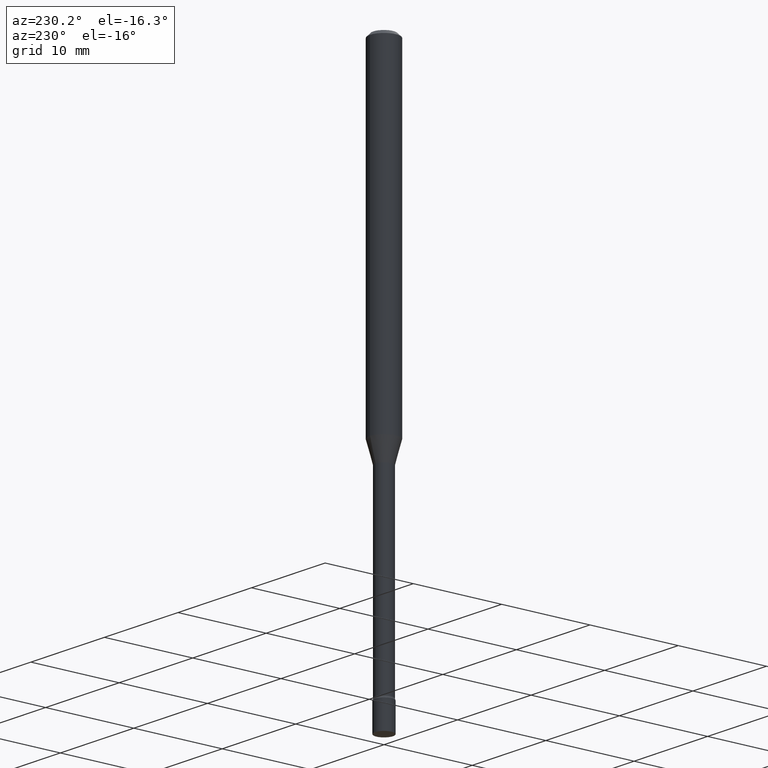
[diagram: clean part render]
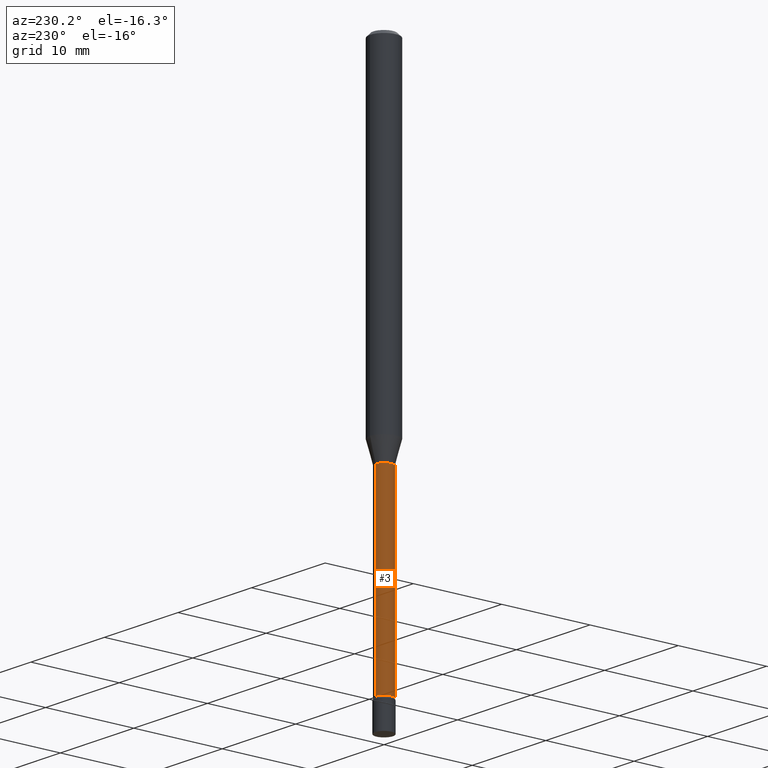
[diagram: same view with one face highlighted and labeled with its STEP entity id]
A machine part, auxiliary view. The second image highlights one B-rep face of the part: STEP entity #3.
In plain terms, the highlighted cylindrical surface (edge-blend (fillet) strip) has radius 0.955 mm, axis along (-0, 0, 1).
Its self-contained STEP definition (entity closure, byte-faithful):
#2 = VERTEX_POINT ( 'NONE', #427 ) ;
#3 = ADVANCED_FACE ( 'NONE', ( #218 ), #393, .T. ) ;
#6 = LINE ( 'NONE', #289, #125 ) ;
#23 = CARTESIAN_POINT ( 'NONE',  ( -2.625593966810039482E-16, -0.03760000000000005005, 1.312797982603617000E-16 ) ) ;
#29 = VERTEX_POINT ( 'NONE', #74 ) ;
#66 = CIRCLE ( 'NONE', #181, 0.03760000000000009862 ) ;
#74 = CARTESIAN_POINT ( 'NONE',  ( -2.625593966809462627E-16, -0.03760000000000837672, -2.371861204020250025 ) ) ;
#77 = EDGE_CURVE ( 'NONE', #78, #2, #6, .T. ) ;
#78 = VERTEX_POINT ( 'NONE', #228 ) ;
#85 = VECTOR ( 'NONE', #285, 39.37007874015748143 ) ;
#113 = EDGE_LOOP ( 'NONE', ( #147, #470, #443, #209 ) ) ;
#125 = VECTOR ( 'NONE', #241, 39.37007874015748143 ) ;
#147 = ORIENTED_EDGE ( 'NONE', *, *, #77, .F. ) ;
#168 = LINE ( 'NONE', #23, #85 ) ;
#178 = DIRECTION ( 'NONE',  ( -6.982962677686265922E-15, -1.000000000000000000, 3.491483996286210646E-15 ) ) ;
#181 = AXIS2_PLACEMENT_3D ( 'NONE', #414, #457, #377 ) ;
#184 = CARTESIAN_POINT ( 'NONE',  ( -2.625593966809658857E-16, -0.03760000000000537912, -1.541974787463811003 ) ) ;
#186 = CARTESIAN_POINT ( 'NONE',  ( 0.000000000000000000, 0.000000000000000000, 0.000000000000000000 ) ) ;
#209 = ORIENTED_EDGE ( 'NONE', *, *, #514, .F. ) ;
#212 = CARTESIAN_POINT ( 'NONE',  ( 3.770848381250961957E-29, -5.383780293106726764E-15, -1.541974787463811003 ) ) ;
#218 = FACE_OUTER_BOUND ( 'NONE', #113, .T. ) ;
#228 = CARTESIAN_POINT ( 'NONE',  ( 2.756905814749772560E-16, 0.03759999999999182052, -2.371861204020250025 ) ) ;
#241 = DIRECTION ( 'NONE',  ( -2.445466950502561851E-29, 3.491483996286211435E-15, 1.000000000000000000 ) ) ;
#264 = DIRECTION ( 'NONE',  ( -2.445466950502562132E-29, 3.491483996286211040E-15, 1.000000000000000000 ) ) ;
#285 = DIRECTION ( 'NONE',  ( -2.445466950502561851E-29, 3.491483996286211435E-15, 1.000000000000000000 ) ) ;
#289 = CARTESIAN_POINT ( 'NONE',  ( 2.671640686457979762E-16, 0.03760000000000005005, -1.312797982603617000E-16 ) ) ;
#300 = AXIS2_PLACEMENT_3D ( 'NONE', #186, #323, #178 ) ;
#323 = DIRECTION ( 'NONE',  ( -2.445466950502562132E-29, 3.491483996286211040E-15, 1.000000000000000000 ) ) ;
#354 = EDGE_CURVE ( 'NONE', #78, #29, #66, .T. ) ;
#377 = DIRECTION ( 'NONE',  ( -6.982962677686265922E-15, -1.000000000000000000, 0.000000000000000000 ) ) ;
#379 = AXIS2_PLACEMENT_3D ( 'NONE', #212, #264, #429 ) ;
#393 = CYLINDRICAL_SURFACE ( 'NONE', #300, 0.03760000000000005005 ) ;
#414 = CARTESIAN_POINT ( 'NONE',  ( 5.800308185610736390E-29, -8.281315435248845648E-15, -2.371861204020250025 ) ) ;
#427 = CARTESIAN_POINT ( 'NONE',  ( 2.671640686458559082E-16, 0.03759999999999461689, -1.541974787463811003 ) ) ;
#429 = DIRECTION ( 'NONE',  ( -6.982962677686265922E-15, -1.000000000000000000, 0.000000000000000000 ) ) ;
#431 = EDGE_CURVE ( 'NONE', #29, #481, #168, .T. ) ;
#443 = ORIENTED_EDGE ( 'NONE', *, *, #431, .T. ) ;
#455 = CIRCLE ( 'NONE', #379, 0.03759999999999999454 ) ;
#457 = DIRECTION ( 'NONE',  ( -2.445466950502562132E-29, 3.491483996286211040E-15, 1.000000000000000000 ) ) ;
#470 = ORIENTED_EDGE ( 'NONE', *, *, #354, .T. ) ;
#481 = VERTEX_POINT ( 'NONE', #184 ) ;
#514 = EDGE_CURVE ( 'NONE', #2, #481, #455, .T. ) ;